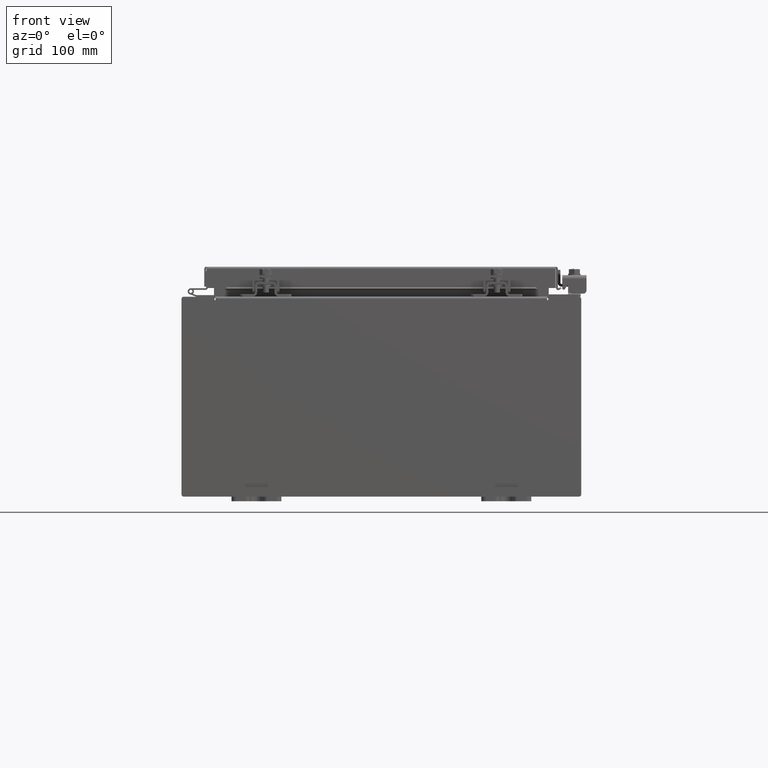
[diagram: clean part render]
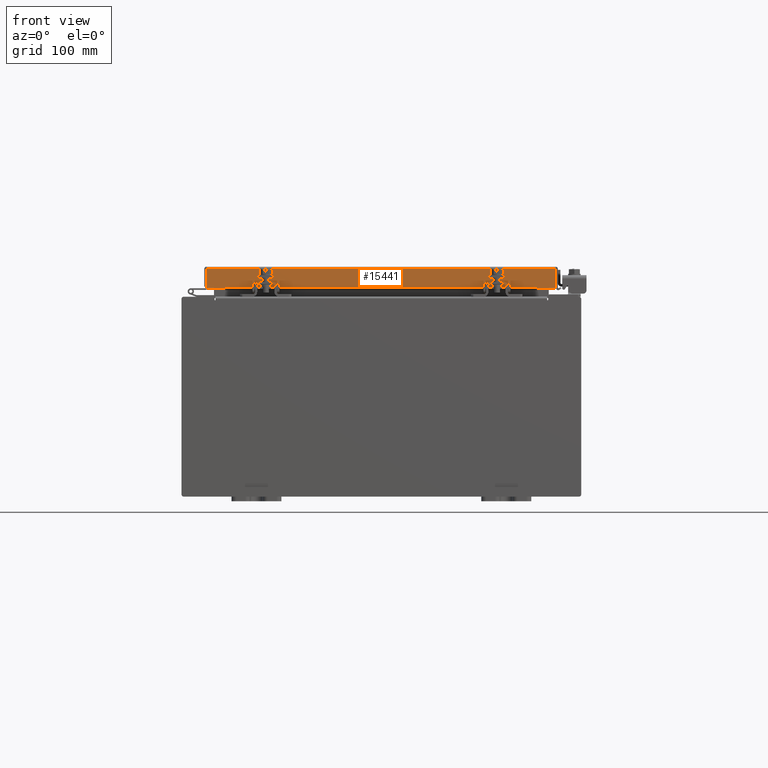
[diagram: same view with one face highlighted and labeled with its STEP entity id]
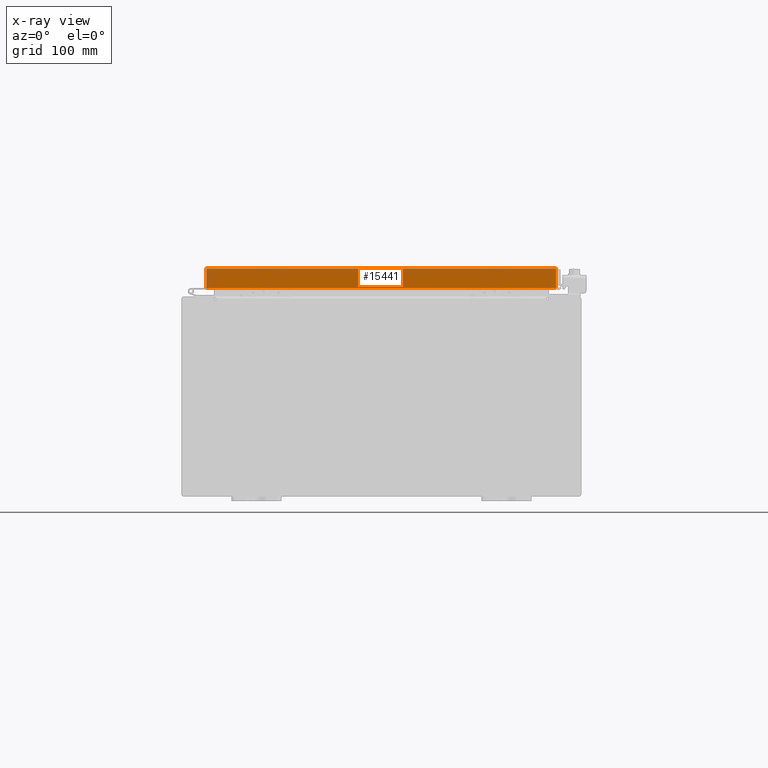
[diagram: x-ray of the same camera — body ghosted, the highlighted face saturated]
A machine part, front view. The second image highlights one B-rep face of the part: STEP entity #15441.
The next image is the same camera in x-ray: the body ghosted, the highlighted face saturated — about 0% of this face is hidden behind the body in this view.
In plain terms, the highlighted planar face has unit normal (-0, 1, -0).
Its self-contained STEP definition (entity closure, byte-faithful):
#589 = EDGE_CURVE ( 'NONE', #24412, #14307, #20861, .T. ) ;
#606 = VECTOR ( 'NONE', #28920, 39.37007874015748100 ) ;
#613 = DIRECTION ( 'NONE',  ( -3.535949605205717500E-031, 1.000000000000000000, -2.818880942772360100E-015 ) ) ;
#885 = LINE ( 'NONE', #21524, #24389 ) ;
#919 = CARTESIAN_POINT ( 'NONE',  ( 6.989157864376271500, -9.093999999999999400, -0.07469999999999978000 ) ) ;
#2263 = LINE ( 'NONE', #29513, #7572 ) ;
#4178 = ORIENTED_EDGE ( 'NONE', *, *, #25862, .F. ) ;
#4255 = VECTOR ( 'NONE', #14582, 39.37007874015748100 ) ;
#4415 = CARTESIAN_POINT ( 'NONE',  ( -6.989157864376266200, -9.094000000000001200, -0.8499999999999978700 ) ) ;
#5247 = DIRECTION ( 'NONE',  ( -1.000000000000000000, -4.379057701015054300E-047, 1.254380613084042800E-016 ) ) ;
#5456 = EDGE_CURVE ( 'NONE', #5666, #14307, #23376, .T. ) ;
#5563 = ORIENTED_EDGE ( 'NONE', *, *, #23113, .F. ) ;
#5666 = VERTEX_POINT ( 'NONE', #9289 ) ;
#7139 = ORIENTED_EDGE ( 'NONE', *, *, #12852, .F. ) ;
#7572 = VECTOR ( 'NONE', #20314, 39.37007874015748100 ) ;
#8259 = ORIENTED_EDGE ( 'NONE', *, *, #589, .F. ) ;
#8639 = CARTESIAN_POINT ( 'NONE',  ( 6.989157864376271500, -9.094000000000001200, -0.8499999999999996400 ) ) ;
#8754 = VECTOR ( 'NONE', #5247, 39.37007874015748100 ) ;
#9289 = CARTESIAN_POINT ( 'NONE',  ( -6.989157864376266200, -9.093999999999999400, -0.08770000000000007000 ) ) ;
#10094 = VECTOR ( 'NONE', #19104, 39.37007874015748100 ) ;
#10316 = LINE ( 'NONE', #28258, #4255 ) ;
#11389 = FACE_OUTER_BOUND ( 'NONE', #19349, .T. ) ;
#11599 = VERTEX_POINT ( 'NONE', #8639 ) ;
#11905 = PLANE ( 'NONE',  #21813 ) ;
#12852 = EDGE_CURVE ( 'NONE', #5666, #16951, #885, .T. ) ;
#13447 = EDGE_CURVE ( 'NONE', #16951, #11599, #22190, .T. ) ;
#14307 = VERTEX_POINT ( 'NONE', #4415 ) ;
#14582 = DIRECTION ( 'NONE',  ( -1.000000000000000000, -4.379057701015054300E-047, 1.254380613084042800E-016 ) ) ;
#15441 = ADVANCED_FACE ( 'NONE', ( #11389 ), #11905, .F. ) ;
#15630 = CARTESIAN_POINT ( 'NONE',  ( 6.989157864376271500, -9.093999999999999400, -0.08770000000000007000 ) ) ;
#16513 = DIRECTION ( 'NONE',  ( 0.0000000000000000000, 2.818880942772360100E-015, 1.000000000000000000 ) ) ;
#16951 = VERTEX_POINT ( 'NONE', #15630 ) ;
#17547 = CARTESIAN_POINT ( 'NONE',  ( -6.989157864376266200, -9.093999999999999400, 2.589571694958342300E-014 ) ) ;
#18468 = CARTESIAN_POINT ( 'NONE',  ( -6.239157864376266200, -9.093999999999997600, -0.8500000000000007500 ) ) ;
#19104 = DIRECTION ( 'NONE',  ( -0.0000000000000000000, -2.818880942772360100E-015, -1.000000000000000000 ) ) ;
#19349 = EDGE_LOOP ( 'NONE', ( #7139, #24876, #8259, #5563, #4178, #20265 ) ) ;
#20265 = ORIENTED_EDGE ( 'NONE', *, *, #13447, .F. ) ;
#20314 = DIRECTION ( 'NONE',  ( -1.000000000000000000, 0.0000000000000000000, 0.0000000000000000000 ) ) ;
#20861 = LINE ( 'NONE', #27078, #8754 ) ;
#21362 = CARTESIAN_POINT ( 'NONE',  ( 6.239157864376270600, -9.093999999999997600, -0.8500000000000007500 ) ) ;
#21524 = CARTESIAN_POINT ( 'NONE',  ( 7.078000000000002100, -9.093999999999999400, -0.08770000000000007000 ) ) ;
#21625 = DIRECTION ( 'NONE',  ( 1.000000000000000000, 3.535949605205718300E-031, -9.638176865770766400E-046 ) ) ;
#21813 = AXIS2_PLACEMENT_3D ( 'NONE', #23296, #613, #16513 ) ;
#22190 = LINE ( 'NONE', #919, #10094 ) ;
#23113 = EDGE_CURVE ( 'NONE', #27012, #24412, #2263, .T. ) ;
#23296 = CARTESIAN_POINT ( 'NONE',  ( 3.215592570974079100E-030, -9.093999999999999400, 2.589571694958342300E-014 ) ) ;
#23376 = LINE ( 'NONE', #17547, #606 ) ;
#24389 = VECTOR ( 'NONE', #21625, 39.37007874015748100 ) ;
#24412 = VERTEX_POINT ( 'NONE', #18468 ) ;
#24876 = ORIENTED_EDGE ( 'NONE', *, *, #5456, .T. ) ;
#25862 = EDGE_CURVE ( 'NONE', #11599, #27012, #10316, .T. ) ;
#27012 = VERTEX_POINT ( 'NONE', #21362 ) ;
#27078 = CARTESIAN_POINT ( 'NONE',  ( 7.078000000000002100, -9.094000000000001200, -0.8499999999999996400 ) ) ;
#28258 = CARTESIAN_POINT ( 'NONE',  ( 7.078000000000002100, -9.094000000000001200, -0.8499999999999996400 ) ) ;
#28920 = DIRECTION ( 'NONE',  ( 0.0000000000000000000, -2.818880942772360100E-015, -1.000000000000000000 ) ) ;
#29513 = CARTESIAN_POINT ( 'NONE',  ( 6.239157864376270600, -9.093999999999997600, -0.8500000000000007500 ) ) ;